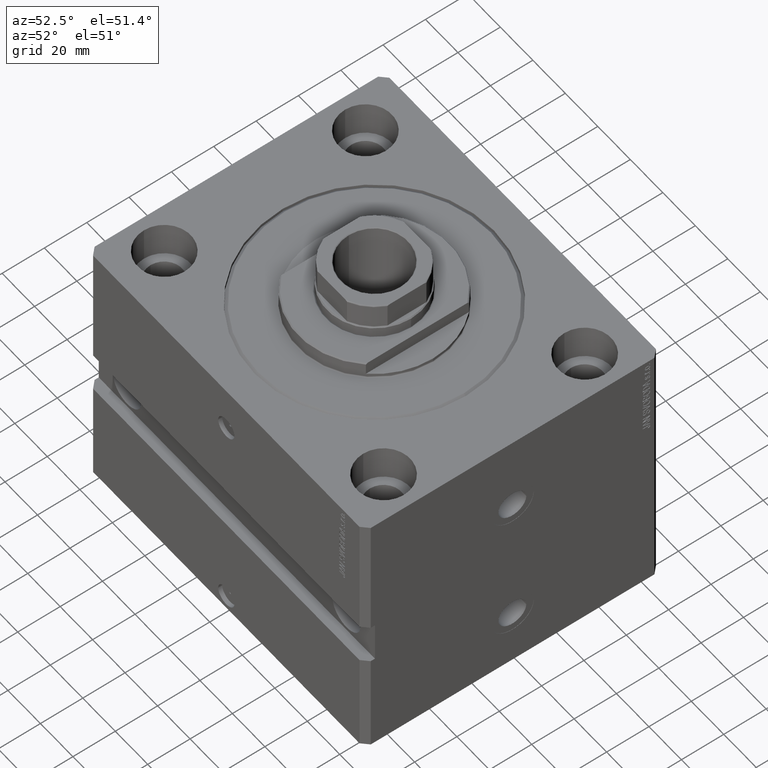
[diagram: clean part render]
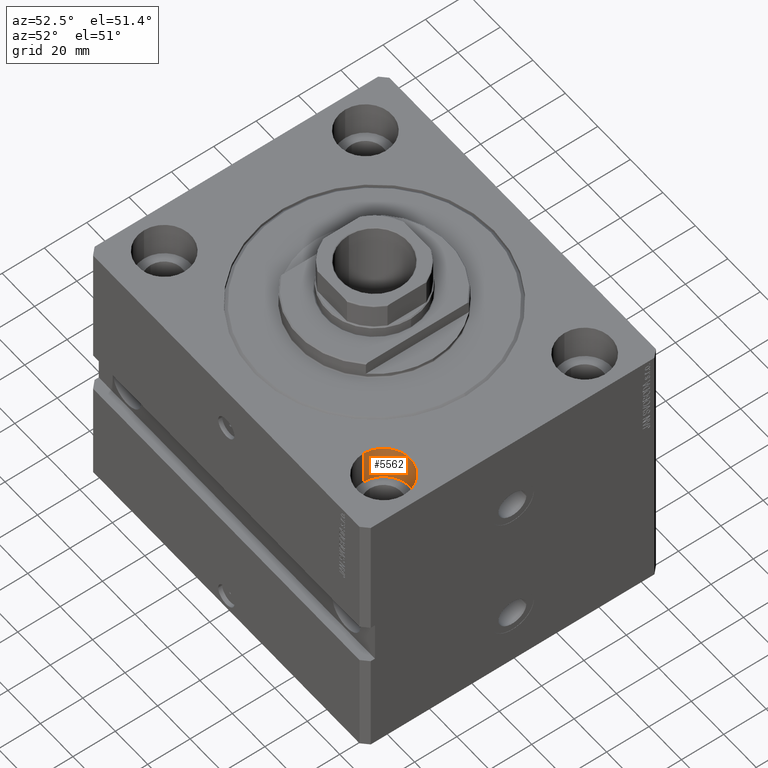
[diagram: same view with one face highlighted and labeled with its STEP entity id]
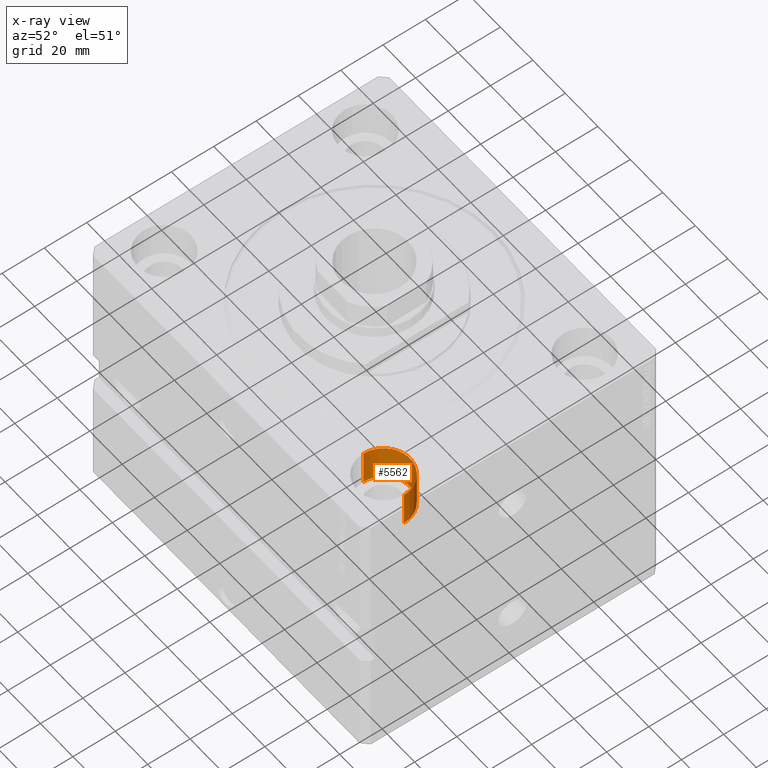
[diagram: x-ray of the same camera — body ghosted, the highlighted face saturated]
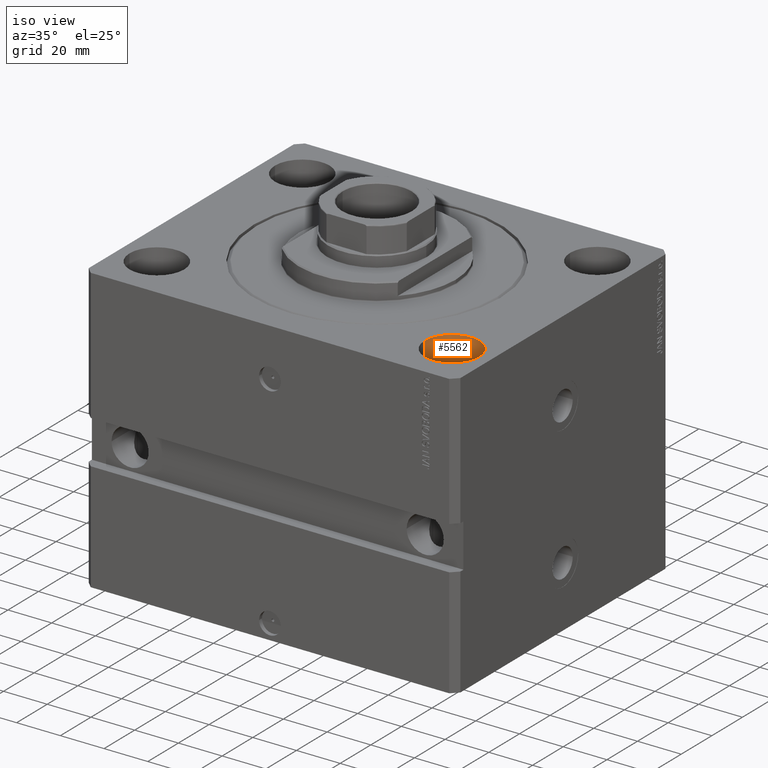
[diagram: same view with one face highlighted and labeled with its STEP entity id]
A machine part, auxiliary view. The second image highlights one B-rep face of the part: STEP entity #5562.
The next image is the same camera in x-ray: the body ghosted, the highlighted face saturated — about 0% of this face is hidden behind the body in this view.
A second angle (iso view) of the same face is appended — the face is thin or edge-on in the first view.
In plain terms, the highlighted cylindrical surface (edge-blend (fillet) strip) has radius 12.5 mm, axis along (0, 0, 1).
Its self-contained STEP definition (entity closure, byte-faithful):
#620 = ORIENTED_EDGE ( 'NONE', *, *, #9971, .F. ) ;
#2962 = CIRCLE ( 'NONE', #6104, 12.49999999999999645 ) ;
#4248 = CIRCLE ( 'NONE', #42946, 12.49999999999999645 ) ;
#4768 = LINE ( 'NONE', #5749, #27165 ) ;
#5562 = ADVANCED_FACE ( 'NONE', ( #29914 ), #26193, .F. ) ;
#5749 = CARTESIAN_POINT ( 'NONE',  ( 55.00000000000000711, -47.50000000000000000, -17.00000000000000000 ) ) ;
#6104 = AXIS2_PLACEMENT_3D ( 'NONE', #26152, #18747, #36525 ) ;
#8647 = VERTEX_POINT ( 'NONE', #12804 ) ;
#9971 = EDGE_CURVE ( 'NONE', #35952, #35325, #4768, .T. ) ;
#10140 = EDGE_CURVE ( 'NONE', #16182, #35952, #4248, .T. ) ;
#11119 = CARTESIAN_POINT ( 'NONE',  ( 67.50000000000000000, -47.50000000000000000, -17.00000000000000000 ) ) ;
#12454 = DIRECTION ( 'NONE',  ( -0.000000000000000000, -0.000000000000000000, 1.000000000000000000 ) ) ;
#12490 = EDGE_CURVE ( 'NONE', #16182, #8647, #25888, .T. ) ;
#12619 = CARTESIAN_POINT ( 'NONE',  ( 55.00000000000000711, -47.50000000000000000, -17.00000000000000000 ) ) ;
#12804 = CARTESIAN_POINT ( 'NONE',  ( 80.00000000000000000, -47.50000000000000000, 0.000000000000000000 ) ) ;
#15282 = EDGE_LOOP ( 'NONE', ( #620, #26501, #47109, #17214 ) ) ;
#15496 = CARTESIAN_POINT ( 'NONE',  ( 80.00000000000000000, -47.50000000000000000, -17.00000000000000000 ) ) ;
#16182 = VERTEX_POINT ( 'NONE', #28336 ) ;
#17214 = ORIENTED_EDGE ( 'NONE', *, *, #21242, .T. ) ;
#18747 = DIRECTION ( 'NONE',  ( 0.000000000000000000, 0.000000000000000000, 1.000000000000000000 ) ) ;
#21242 = EDGE_CURVE ( 'NONE', #8647, #35325, #2962, .T. ) ;
#24147 = CARTESIAN_POINT ( 'NONE',  ( 55.00000000000000711, -47.50000000000000000, 0.000000000000000000 ) ) ;
#25888 = LINE ( 'NONE', #15496, #28049 ) ;
#26152 = CARTESIAN_POINT ( 'NONE',  ( 67.50000000000000000, -47.50000000000000000, 0.000000000000000000 ) ) ;
#26193 = CYLINDRICAL_SURFACE ( 'NONE', #31762, 12.49999999999999645 ) ;
#26501 = ORIENTED_EDGE ( 'NONE', *, *, #10140, .F. ) ;
#27165 = VECTOR ( 'NONE', #12454, 1000.000000000000000 ) ;
#28049 = VECTOR ( 'NONE', #30586, 1000.000000000000000 ) ;
#28336 = CARTESIAN_POINT ( 'NONE',  ( 80.00000000000000000, -47.50000000000000000, -17.00000000000000000 ) ) ;
#29425 = DIRECTION ( 'NONE',  ( 1.000000000000000000, 0.000000000000000000, 0.000000000000000000 ) ) ;
#29914 = FACE_OUTER_BOUND ( 'NONE', #15282, .T. ) ;
#30586 = DIRECTION ( 'NONE',  ( -0.000000000000000000, -0.000000000000000000, 1.000000000000000000 ) ) ;
#31762 = AXIS2_PLACEMENT_3D ( 'NONE', #11119, #41275, #29425 ) ;
#33436 = CARTESIAN_POINT ( 'NONE',  ( 67.50000000000000000, -47.50000000000000000, -17.00000000000000000 ) ) ;
#35325 = VERTEX_POINT ( 'NONE', #24147 ) ;
#35952 = VERTEX_POINT ( 'NONE', #12619 ) ;
#36146 = DIRECTION ( 'NONE',  ( 1.000000000000000000, 0.000000000000000000, 0.000000000000000000 ) ) ;
#36525 = DIRECTION ( 'NONE',  ( 1.000000000000000000, 0.000000000000000000, 0.000000000000000000 ) ) ;
#41275 = DIRECTION ( 'NONE',  ( -0.000000000000000000, -0.000000000000000000, 1.000000000000000000 ) ) ;
#42946 = AXIS2_PLACEMENT_3D ( 'NONE', #33436, #43593, #36146 ) ;
#43593 = DIRECTION ( 'NONE',  ( 0.000000000000000000, 0.000000000000000000, 1.000000000000000000 ) ) ;
#47109 = ORIENTED_EDGE ( 'NONE', *, *, #12490, .T. ) ;